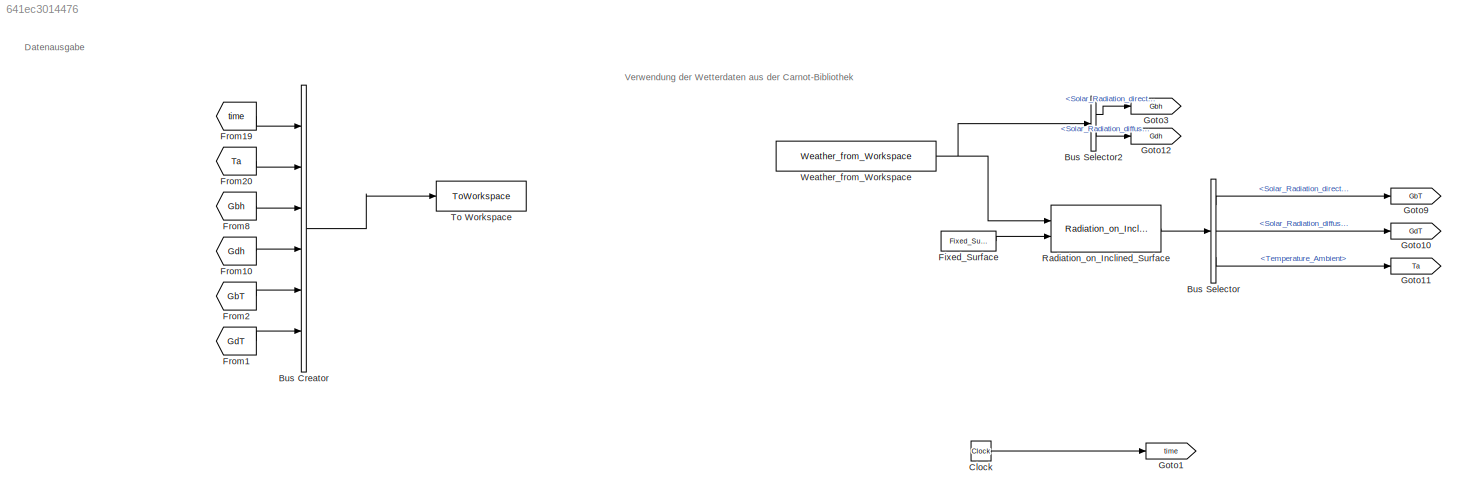
MODEL slx_641ec3014476
KIND model
CONFIG AbsTol = auto
CONFIG EnableMultiTasking = on
CONFIG FixedStep = dt_sim
CONFIG MaxStep = auto
CONFIG MinStep = auto
CONFIG RelTol = 1e-3
CONFIG SampleTimeConstraint = Unconstrained
CONFIG Solver = VariableStepAuto
CONFIG SolverName = VariableStepAuto
CONFIG StartTime = t_start
CONFIG StopTime = t_end
BLOCK [BusCreator] Bus Creator
  DisplayOption = bar
  InheritFromInputs = on
  Inputs = 6
  Ports = [6, 1]
BLOCK [BusSelector] Bus Selector
  OutputSignals = Solar_Radiation_direct_surface,Solar_Radiation_diffuse_surface,Temperature_Ambient
  Ports = [1, 3]
BLOCK [BusSelector] Bus Selector2
  OutputSignals = Solar_Radiation_direct_surface,Solar_Radiation_diffuse_surface
  Ports = [1, 2]
BLOCK [Clock] Clock
BLOCK [Reference] Fixed_Surface  REF=carnot/Weather/Fixed_Surface
  Ports = [0, 1]
  SourceBlock = carnot/Weather/Fixed_Surface
  SourceProductName = Carnot
  SourceType = fixed surface
BLOCK [From] From1
  GotoTag = GdT
BLOCK [From] From10
  GotoTag = Gdh
BLOCK [From] From19
  GotoTag = time
BLOCK [From] From2
  GotoTag = GbT
BLOCK [From] From20
  GotoTag = Ta
BLOCK [From] From8
  GotoTag = Gbh
BLOCK [Goto] Goto1
  GotoTag = time
BLOCK [Goto] Goto10
  GotoTag = GdT
BLOCK [Goto] Goto11
  GotoTag = Ta
BLOCK [Goto] Goto12
  GotoTag = Gdh
BLOCK [Goto] Goto3
  GotoTag = Gbh
BLOCK [Goto] Goto9
  GotoTag = GbT
BLOCK [Reference] Radiation_on_Inclined_Surface  REF=carnot/Weather/Radiation_on_Inclined_Surface
  Ports = [2, 1]
  SourceBlock = carnot/Weather/Radiation_on_Inclined_Surface
  SourceProductName = Carnot
  SourceType = inclined surface
BLOCK [ToWorkspace] To Workspace
  FixptAsFi = on
  MaxDataPoints = inf
  Ports = [1]
  SampleTime = sampletime
  Save2DSignal = 2-D array (concatenate along first dimension)
  VariableName = Ergebnisse
BLOCK [Reference] Weather_from_Workspace  REF=carnot/Weather/Weather_from_Workspace
  Ports = [0, 1]
  SourceBlock = carnot/Weather/Weather_from_Workspace
  SourceProductName = Carnot
  SourceType = weather from workspace
ANNOTATION (root): Datenausgabe
ANNOTATION (root): Verwendung der Wetterdaten aus der Carnot-Bibliothek
LINE Bus Creator:1 -> To Workspace:1
LINE Bus Selector2:1 -> Goto3:1
LINE Bus Selector2:2 -> Goto12:1
LINE Bus Selector:1 -> Goto9:1
LINE Bus Selector:2 -> Goto10:1
LINE Bus Selector:3 -> Goto11:1
LINE Clock:1 -> Goto1:1
LINE Fixed_Surface:1 -> Radiation_on_Inclined_Surface:2
LINE From10:1 -> Bus Creator:4
LINE From19:1 -> Bus Creator:1
LINE From1:1 -> Bus Creator:6
LINE From20:1 -> Bus Creator:2
LINE From2:1 -> Bus Creator:5
LINE From8:1 -> Bus Creator:3
LINE Radiation_on_Inclined_Surface:1 -> Bus Selector:1
NET Weather_from_Workspace:1 -> Bus Selector2:1, Radiation_on_Inclined_Surface:1
note: NET lines group one-source signal fan-out (src -> all destinations, sorted); 1:1 wires keep LINE
